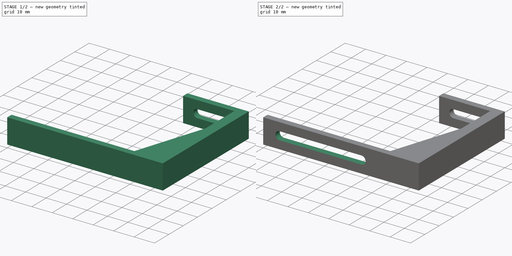
[diagram: build sequence overview — one tinted view per stage of 2, left to right]
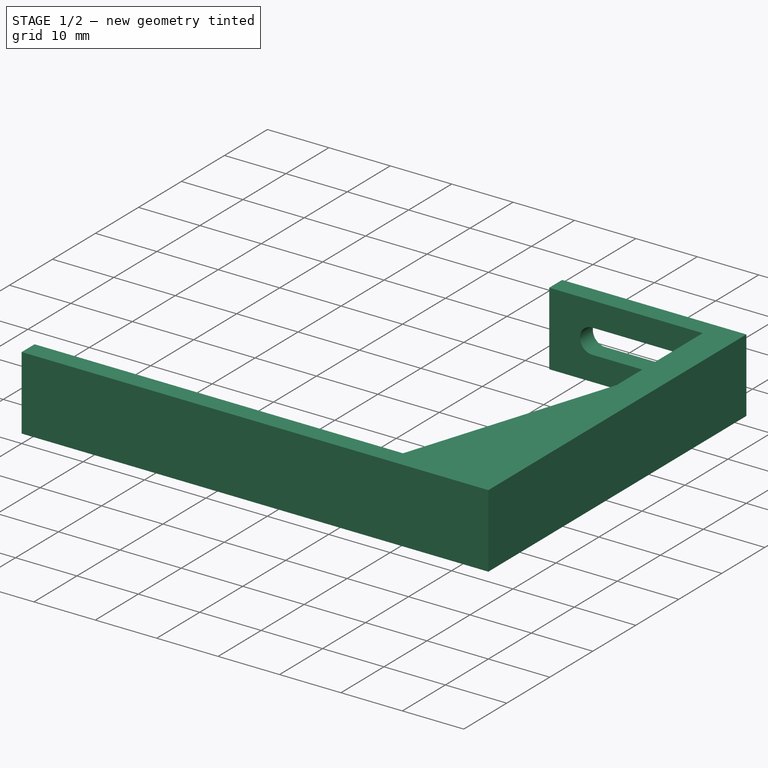
[diagram: stage 1 of 2 — iso view after this stage's code; geometry added in this stage tinted green]
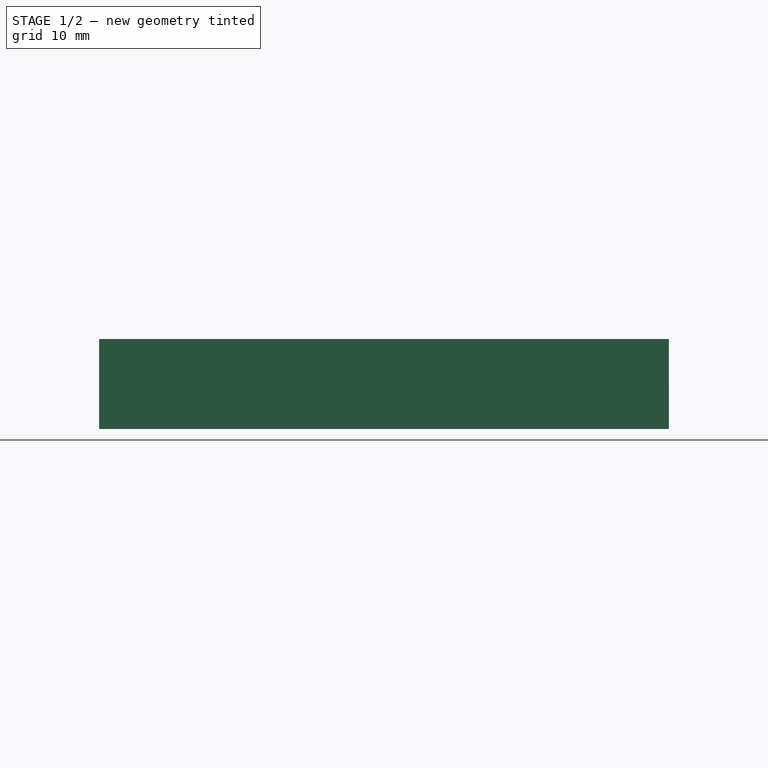
[diagram: stage 1 of 2 — front view after this stage's code; geometry added in this stage tinted green]
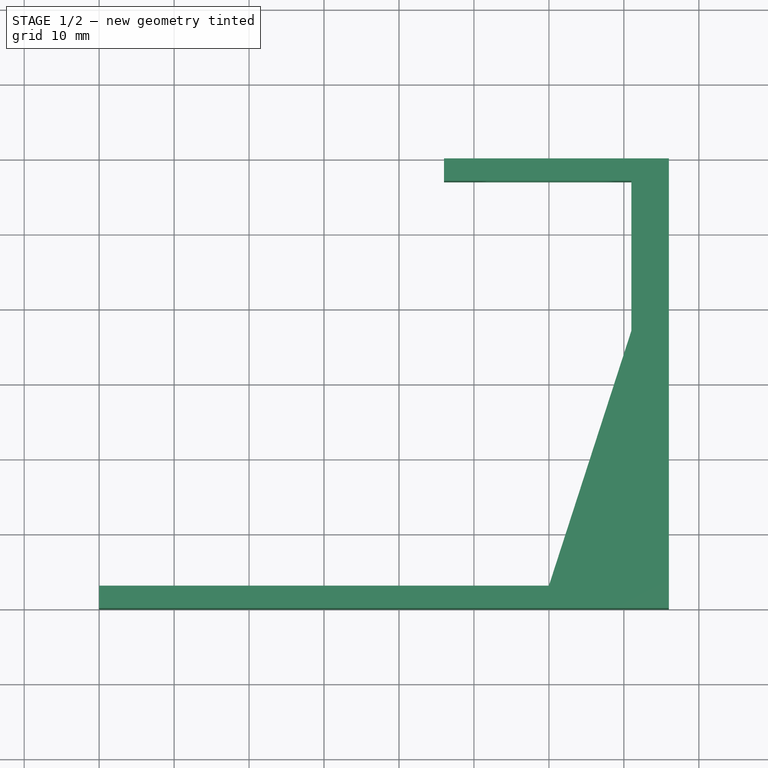
[diagram: stage 1 of 2 — top view after this stage's code; geometry added in this stage tinted green]
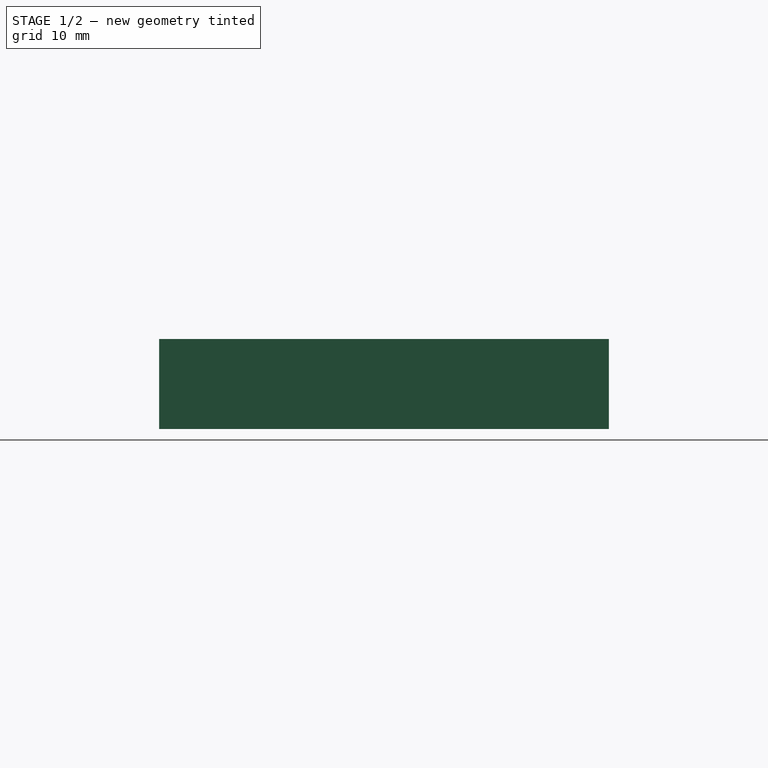
[diagram: stage 1 of 2 — right view after this stage's code; geometry added in this stage tinted green]
FCSTD DOCUMENT  (FreeCAD 0.18.4R)
Label: Holder for nema 17
License: All rights reserved
LicenseURL: http://en.wikipedia.org/wiki/All_rights_reserved
objects: Sketcher::SketchObject×3, PartDesign::Pocket×2, PartDesign::Pad×1, PartDesign::Body×1
note: 10 computed .brp shape members not serialized (recipe doc carries the construction recipe); baked Part::Feature solids carry a one-line shape summary decoded from their .brp

FEATURE [Sketcher::SketchObject] Sketch
  MapMode = 5
  Support = -> [XY_Plane]
  sketch-geometry (9):
    g0: LineSegment StartX=0 StartY=0 StartZ=0 EndX=76 EndY=0 EndZ=0
    g1: LineSegment StartX=76 StartY=0 StartZ=0 EndX=76 EndY=60 EndZ=0
    g2: LineSegment StartX=0 StartY=0 StartZ=0 EndX=0 EndY=3 EndZ=0
    g3: LineSegment StartX=76 StartY=60 StartZ=0 EndX=46 EndY=60 EndZ=0
    g4: LineSegment StartX=46 StartY=60 StartZ=0 EndX=46 EndY=57 EndZ=0
    g5: LineSegment StartX=46 StartY=57 StartZ=0 EndX=71 EndY=57 EndZ=0
    g6: LineSegment StartX=0 StartY=3 StartZ=0 EndX=60 EndY=3 EndZ=0
    g7: LineSegment StartX=71 StartY=37 StartZ=0 EndX=71 EndY=57 EndZ=0
    g8: LineSegment StartX=71 StartY=37 StartZ=0 EndX=60 EndY=3 EndZ=0
  constraints (26):
    c: DistanceX(g0,g0) = 76
    c: Coincident(g0,g-1)
    c: Horizontal(g0)
    c: Vertical(g1)
    c: Coincident(g0,g1)
    c: DistanceY(g1,g1) = 60
    c: Horizontal(g3)
    c: DistanceX(g3,g3) = 30
    c: Coincident(g1,g3)
    c: Vertical(g4)
    c: DistanceY(g4,g4) = 3
    c: Horizontal(g5)
    c: DistanceX(g5,g1) = 5
    c: DistanceY(g2,g2) = 3
    c: Coincident(g0,g2)
    c: Coincident(g5,g7)
    c: Horizontal(g6)
    c: Coincident(g2,g6)
    c: Vertical(g7)
    c: Coincident(g4,g3)
    c: Coincident(g5,g4)
    c: DistanceY(g7,g7) = 20
    c: DistanceX(g6,g6) = 60
    c: Vertical(g2)
    c: Coincident(g7,g8)
    c: Coincident(g6,g8)
FEATURE [PartDesign::Pad] Pad
  Length = 12
  Length2 = 100
  Profile = -> Sketch
  Type = 0
FEATURE [Sketcher::SketchObject] Sketch001
  MapMode = 5
  Placement = pos=(0,60,0) rot=(0,0.707107,0.707107;3.14159rad)
  Support = -> [Pad]
  sketch-geometry (4):
    g0: ArcOfCircle CenterX=-67 CenterY=6 CenterZ=0 NormalX=0 NormalY=0 NormalZ=1 AngleXU=0 Radius=2 StartAngle=1.5708 EndAngle=4.71239
    g1: ArcOfCircle CenterX=-53 CenterY=6 CenterZ=0 NormalX=0 NormalY=0 NormalZ=1 AngleXU=0 Radius=2 StartAngle=4.71239 EndAngle=7.85398
    g2: LineSegment StartX=-53 StartY=8 StartZ=0 EndX=-67 EndY=8 EndZ=0
    g3: LineSegment StartX=-67 StartY=4 StartZ=0 EndX=-53 EndY=4 EndZ=0
  constraints (12):
    c: DistanceX(g0,g-1) = 67
    c: Radius(g0) = 2
    c: Coincident(g0,g2)
    c: Coincident(g0,g3)
    c: DistanceY(g0,g0) = 4
    c: Coincident(g1,g2)
    c: Coincident(g1,g3)
    c: DistanceY(g1,g1) = 4
    c: Radius(g1) = 2
    c: DistanceY(g-1,g0) = 6
    c: DistanceY(g-1,g1) = 6
    c: DistanceX(g0,g1) = 14
FEATURE [PartDesign::Pocket] Pocket
  BaseFeature = -> Pad
  Length = 5
  Length2 = 100
  Profile = -> Sketch001
  Type = 0
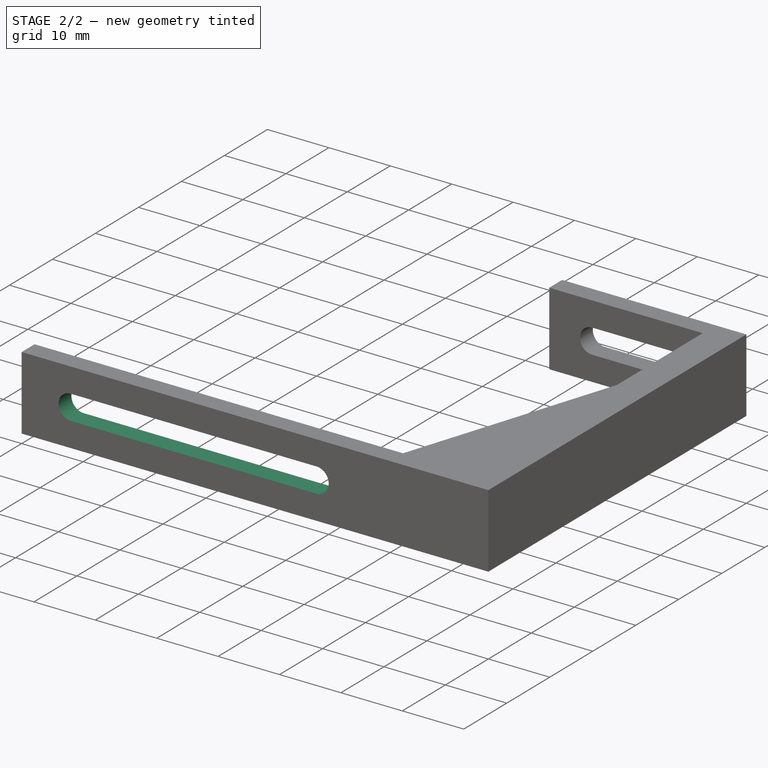
[diagram: stage 2 of 2 — iso view after this stage's code; geometry added in this stage tinted green]
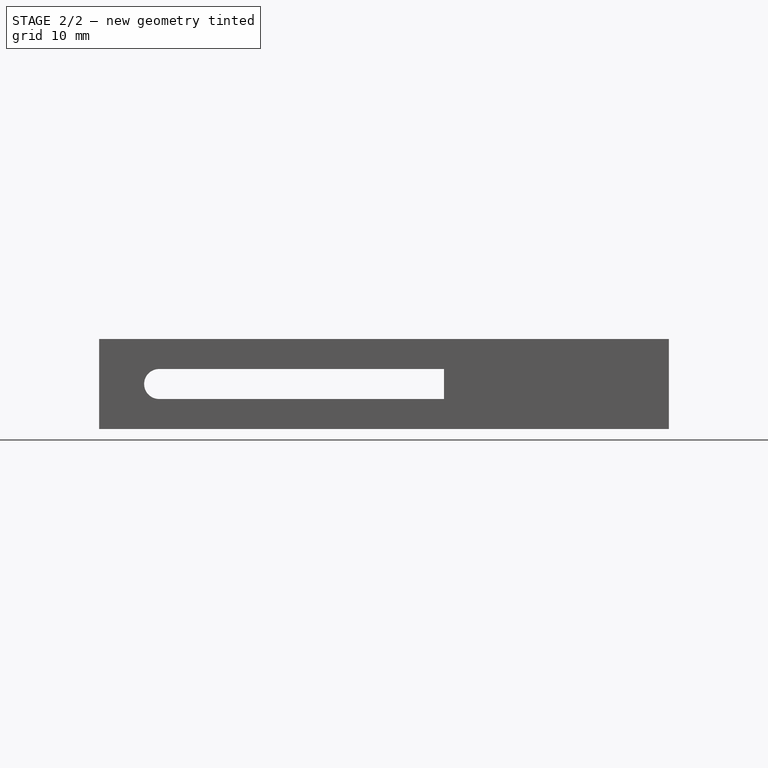
[diagram: stage 2 of 2 — front view after this stage's code; geometry added in this stage tinted green]
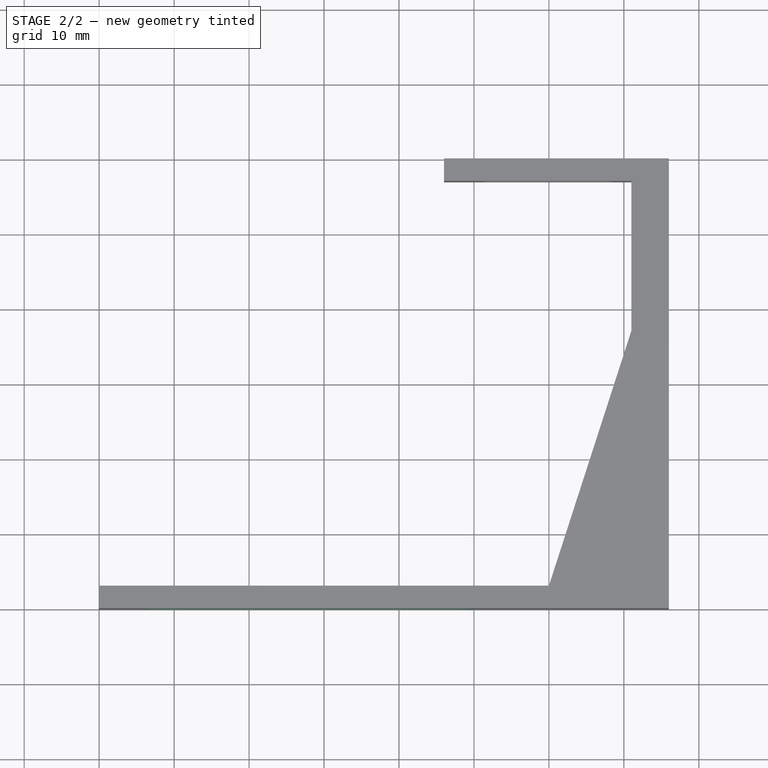
[diagram: stage 2 of 2 — top view after this stage's code; geometry added in this stage tinted green]
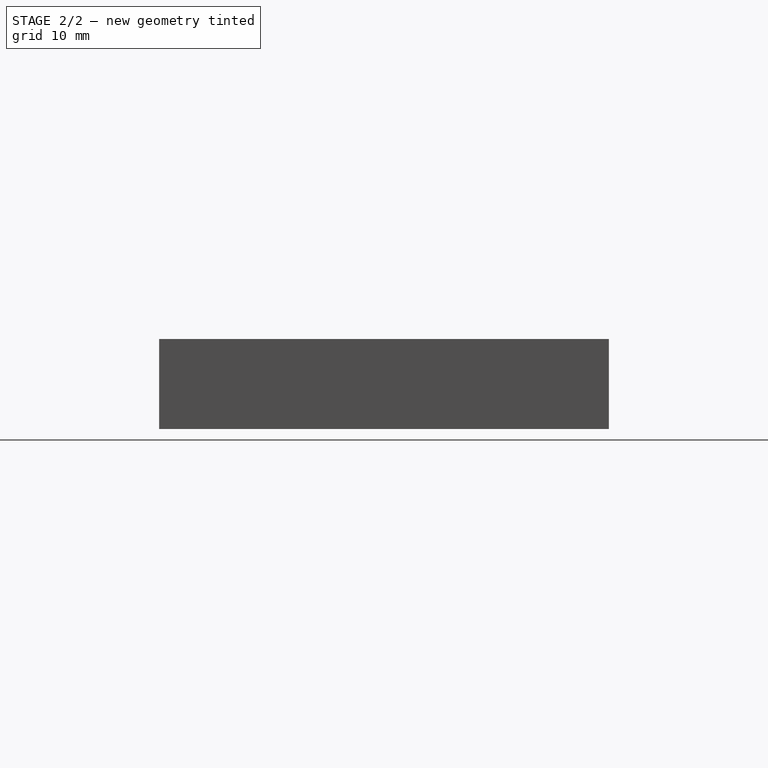
[diagram: stage 2 of 2 — right view after this stage's code; geometry added in this stage tinted green]
FEATURE [Sketcher::SketchObject] Sketch002
  MapMode = 5
  Placement = pos=(0,3,0) rot=(0,0.707107,0.707107;3.14159rad)
  Support = -> [Pocket]
  sketch-geometry (4):
    g0: ArcOfCircle CenterX=-48 CenterY=6 CenterZ=0 NormalX=0 NormalY=0 NormalZ=1 AngleXU=0 Radius=2 StartAngle=1.5708 EndAngle=4.71239
    g1: ArcOfCircle CenterX=-8 CenterY=6 CenterZ=0 NormalX=0 NormalY=0 NormalZ=1 AngleXU=0 Radius=2 StartAngle=4.71239 EndAngle=7.85398
    g2: LineSegment StartX=-48 StartY=4 StartZ=0 EndX=-8 EndY=4 EndZ=0
    g3: LineSegment StartX=-48 StartY=8 StartZ=0 EndX=-8 EndY=8 EndZ=0
  constraints (10):
    c: Tangent(g0,g3) = 1.5708
    c: Tangent(g0,g2) = -1.5708
    c: Tangent(g2,g1) = -1.5708
    c: Tangent(g3,g1) = 1.5708
    c: Horizontal(g2)
    c: Equal(g0,g1)
    c: DistanceX(g1,g-1) = 8
    c: Radius(g1) = 2
    c: DistanceY(g-1,g1) = 6
    c: DistanceX(g2,g2) = 40
FEATURE [PartDesign::Pocket] Pocket001
  BaseFeature = -> Pocket
  Length = 5
  Length2 = 100
  Profile = -> Sketch002
  Type = 0
FEATURE [PartDesign::Body] Body
  Group = -> [Sketch,Pad,Sketch001,Pocket,Sketch002,Pocket001]
  Origin = -> Origin
  Tip = -> Pocket001
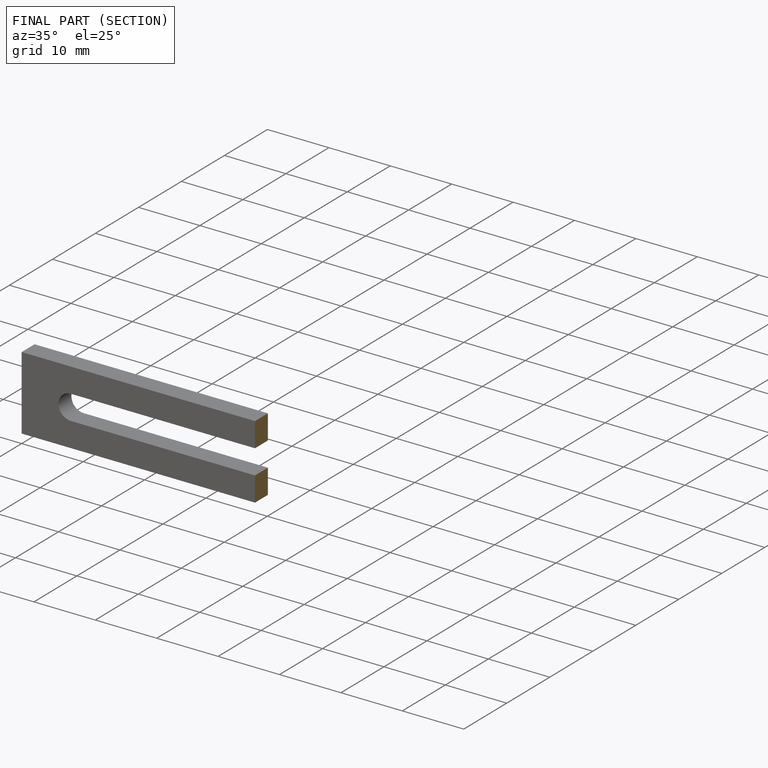
[diagram: finished part — half-section view (interior)]
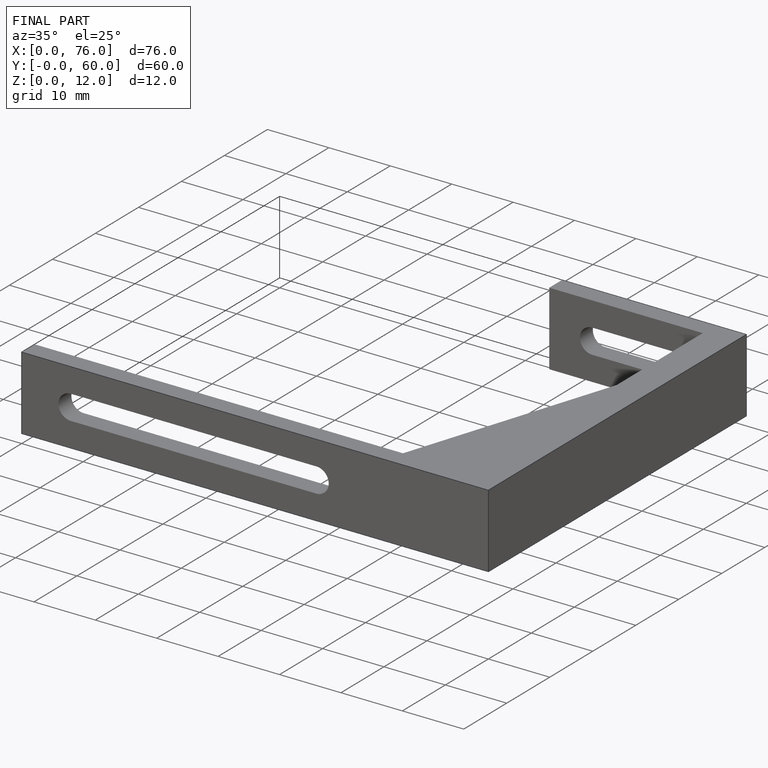
[diagram: finished part — iso view with bounding-box wireframe]
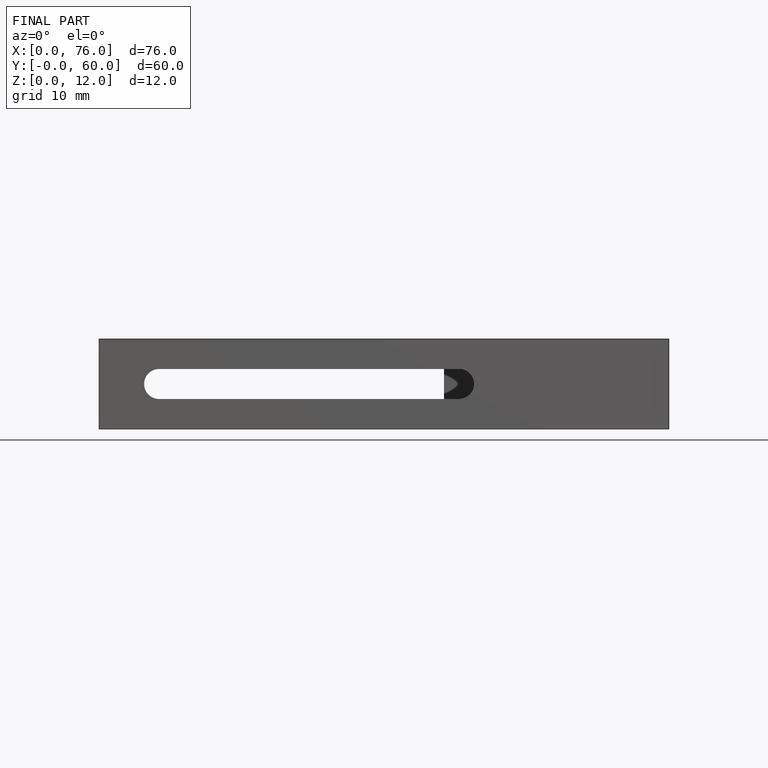
[diagram: finished part — front view with bounding-box wireframe]
